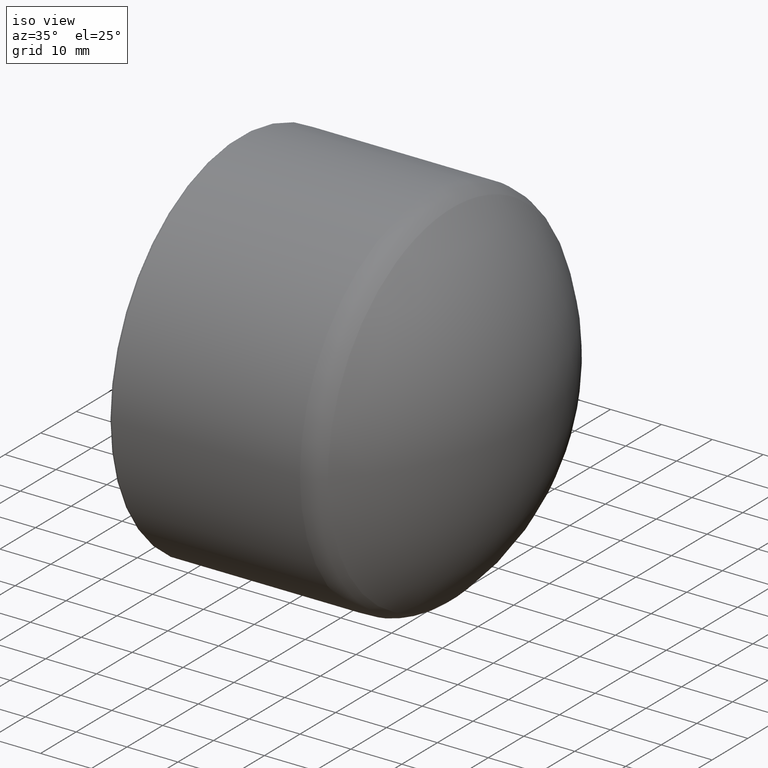
[diagram: clean part render]
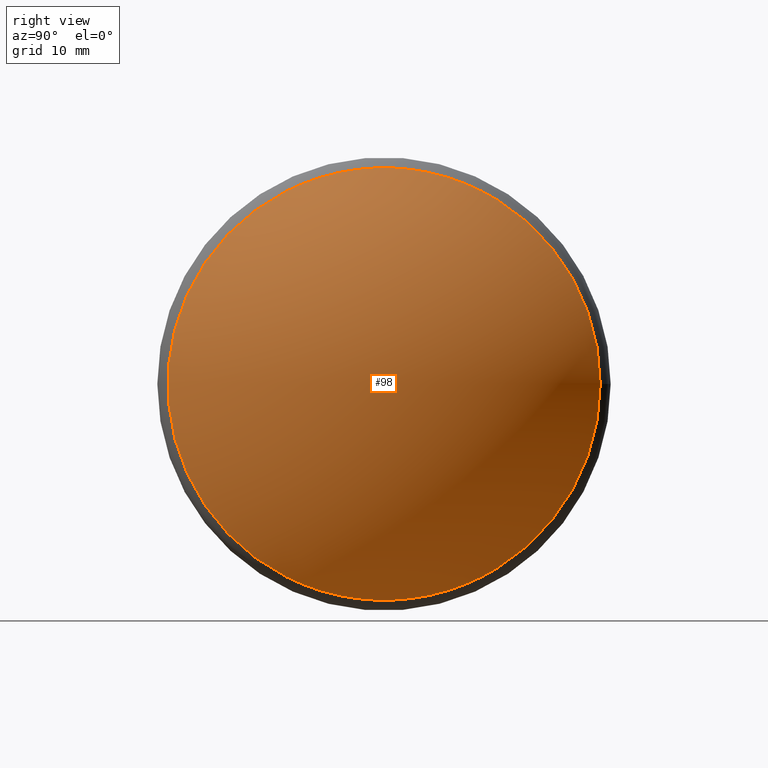
[diagram: tour spotlight — one face highlighted and labeled with its STEP entity id]
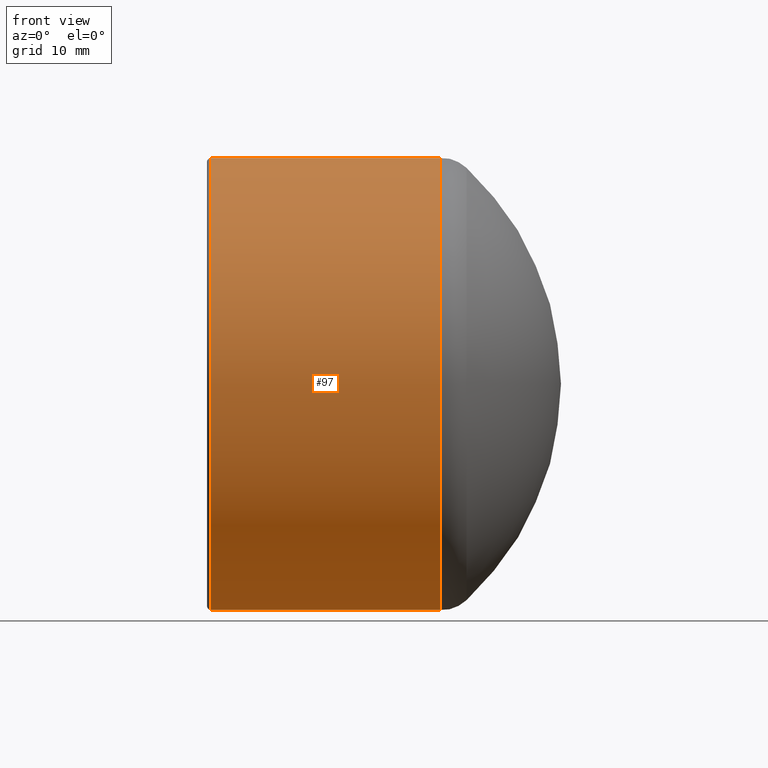
[diagram: tour spotlight — one face highlighted and labeled with its STEP entity id]
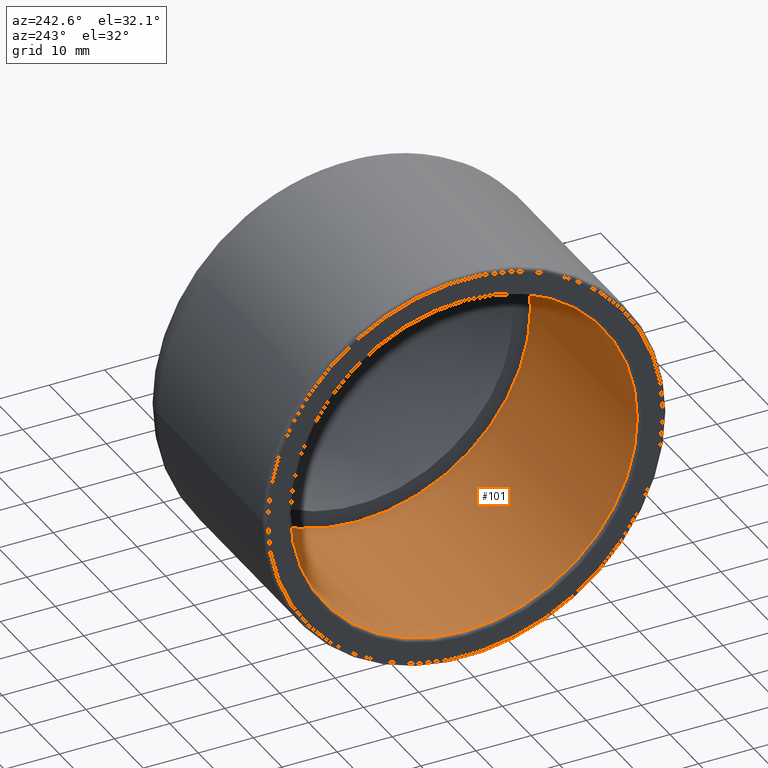
[diagram: tour spotlight — one face highlighted and labeled with its STEP entity id]
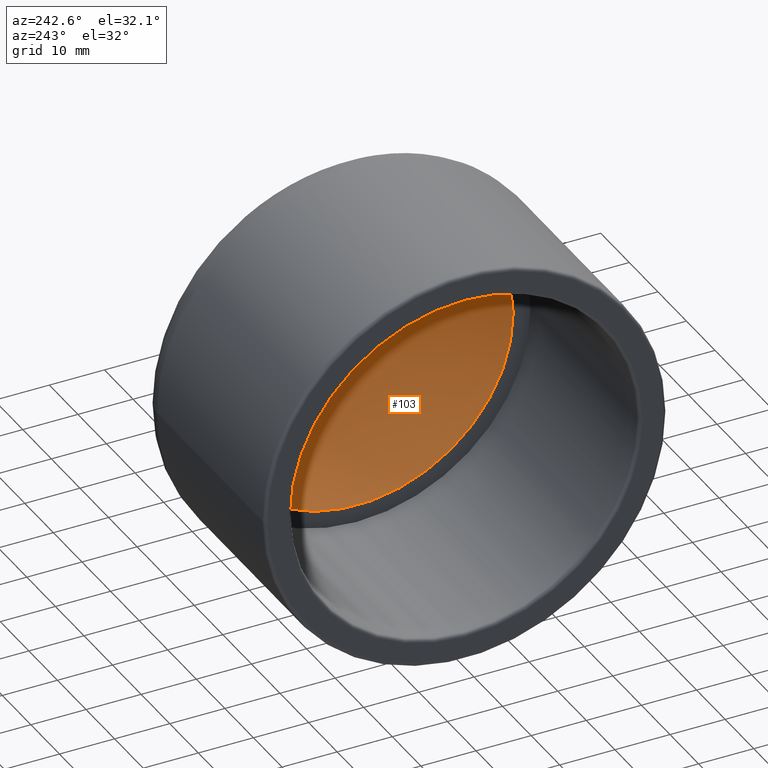
[diagram: tour spotlight — one face highlighted and labeled with its STEP entity id]
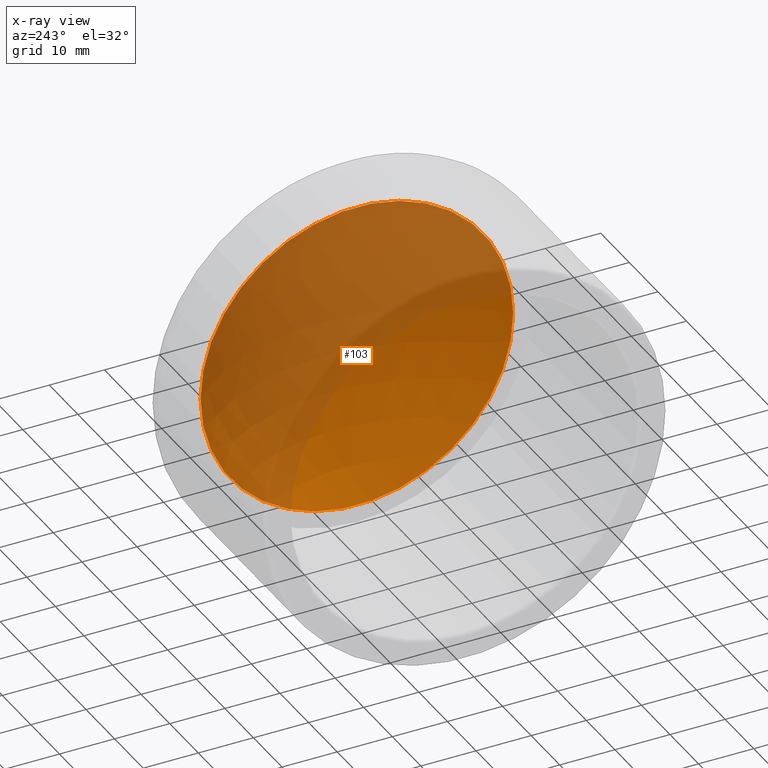
[diagram: x-ray of the same camera — body ghosted, this tour face saturated]
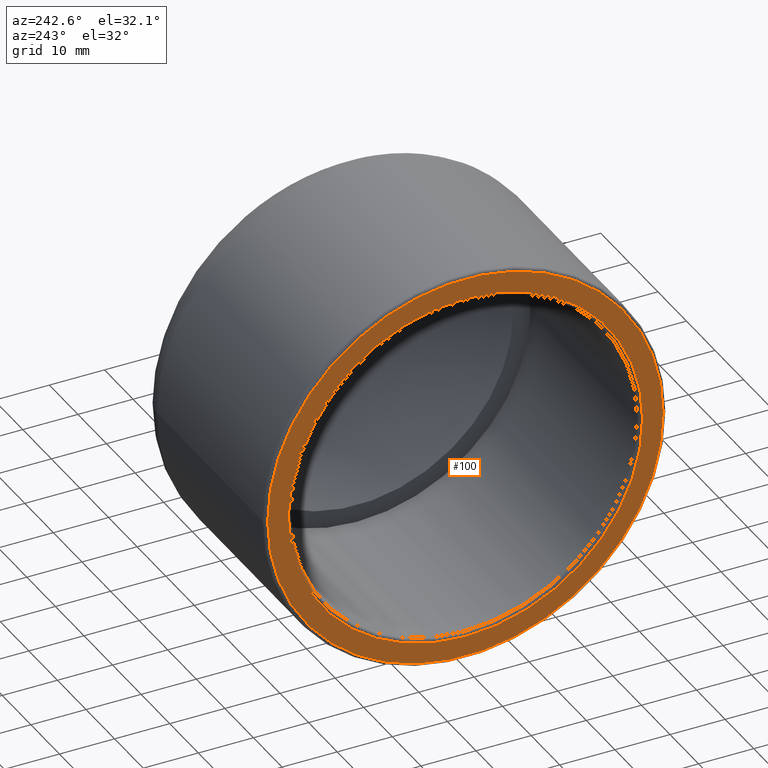
[diagram: tour spotlight — one face highlighted and labeled with its STEP entity id]
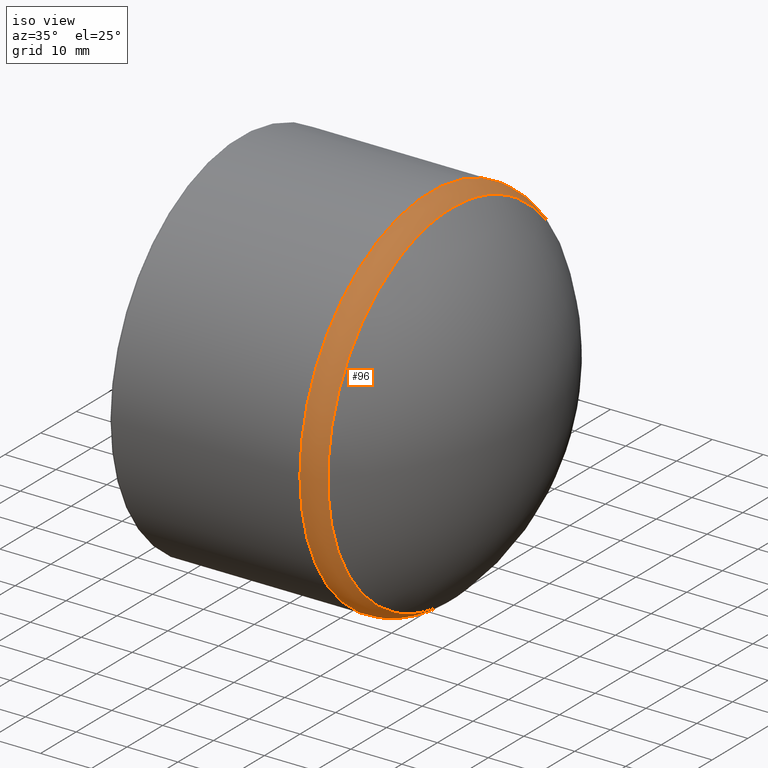
[diagram: tour spotlight — one face highlighted and labeled with its STEP entity id]
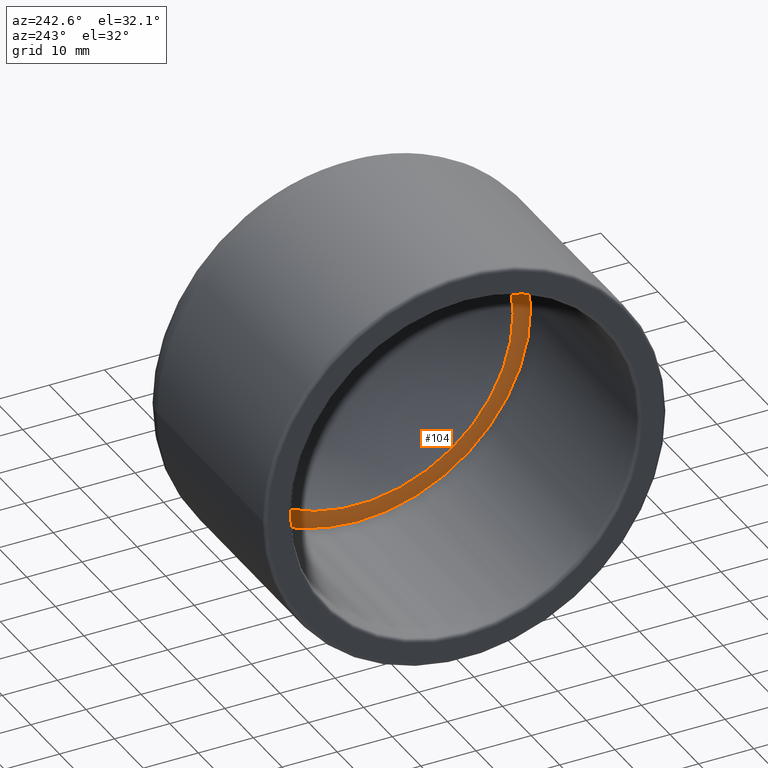
[diagram: tour spotlight — one face highlighted and labeled with its STEP entity id]
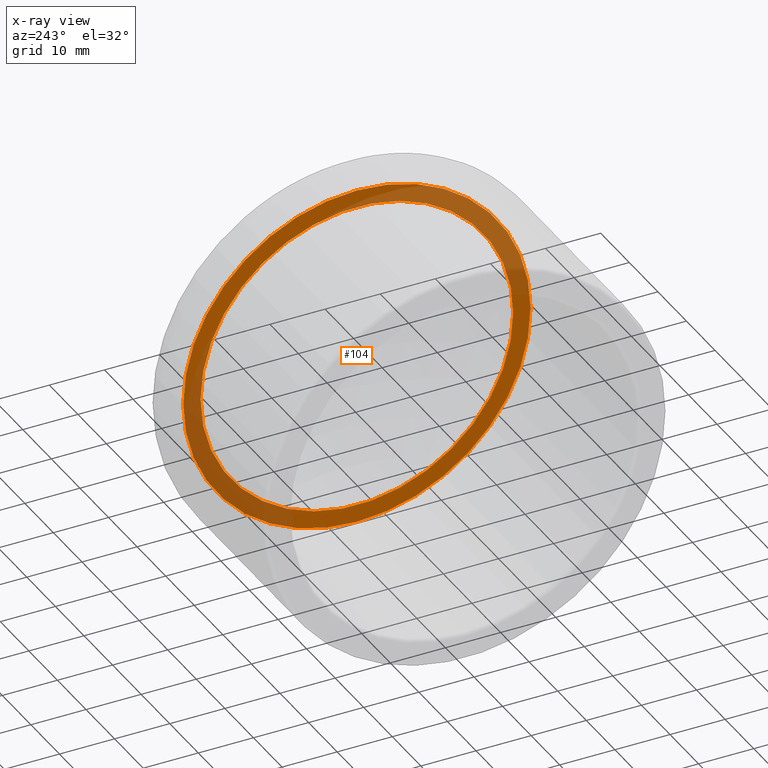
[diagram: x-ray of the same camera — body ghosted, this tour face saturated]
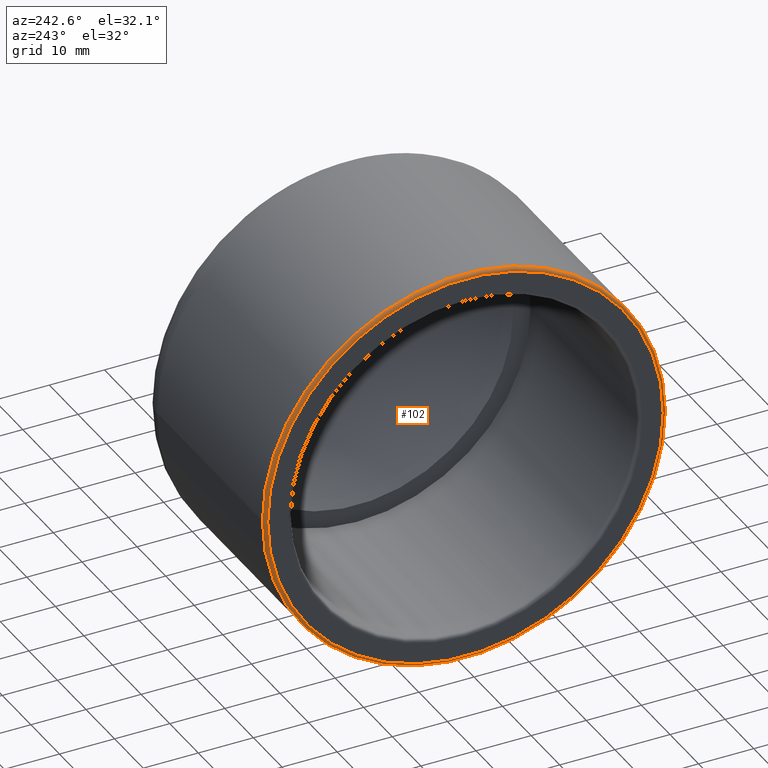
[diagram: tour spotlight — one face highlighted and labeled with its STEP entity id]
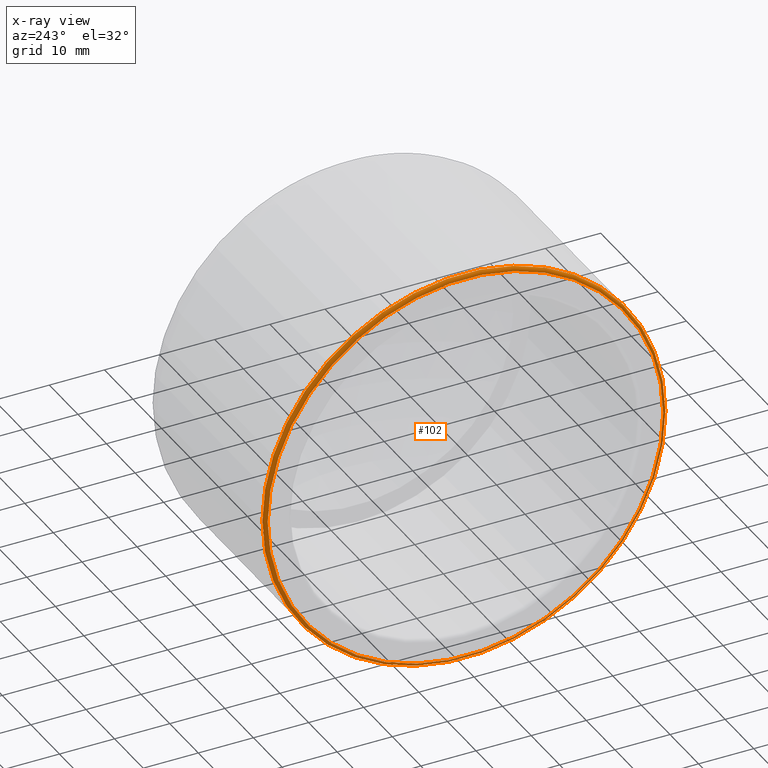
[diagram: x-ray of the same camera — body ghosted, this tour face saturated]
A machine part: a face-by-face anatomy tour. The part has 9 B-rep faces; the first image is the clean iso view, then the 8 largest visible faces are spotlighted one at a time (largest first), each with its STEP entity span.

Face 1 — right view, entity #98. In plain terms, the highlighted spherical surface has radius 47.5047 mm.
Definition (entity closure, byte-faithful):
#17=SPHERICAL_SURFACE('',#112,47.5046783625731);
#30=FACE_OUTER_BOUND('',#41,.T.);
#41=EDGE_LOOP('',(#81));
#54=CIRCLE('',#109,34.8174368435992);
#62=VERTEX_POINT('',#164);
#70=EDGE_CURVE('',#62,#62,#54,.T.);
#81=ORIENTED_EDGE('',*,*,#70,.F.);
#98=ADVANCED_FACE('',(#30),#17,.T.);
#109=AXIS2_PLACEMENT_3D('',#165,#130,#131);
#112=AXIS2_PLACEMENT_3D('',#169,#136,#137);
#130=DIRECTION('center_axis',(-1.,-1.2277497043788E-16,0.));
#131=DIRECTION('ref_axis',(1.2166827667125E-16,-1.,1.83697019872103E-16));
#136=DIRECTION('center_axis',(0.,0.,1.));
#137=DIRECTION('ref_axis',(1.,0.,0.));
#164=CARTESIAN_POINT('',(-15.1868727753507,34.8174368435992,-1.06597656462572E-14));
#165=CARTESIAN_POINT('Origin',(-15.1868727753507,-1.86682157061912E-15,
0.));
#169=CARTESIAN_POINT('Origin',(-47.5046783625731,-5.81764523012497E-15,
0.));

Face 2 — front view, entity #97. In plain terms, the highlighted cylindrical surface (bore or boss wall) has radius 36.5 mm, axis along (1, 0, 0).
Definition (entity closure, byte-faithful):
#19=CYLINDRICAL_SURFACE('',#110,36.5);
#22=FACE_BOUND('',#40,.T.);
#29=FACE_OUTER_BOUND('',#39,.T.);
#39=EDGE_LOOP('',(#79));
#40=EDGE_LOOP('',(#80));
#53=CIRCLE('',#108,36.5);
#55=CIRCLE('',#111,36.5);
#61=VERTEX_POINT('',#162);
#63=VERTEX_POINT('',#167);
#69=EDGE_CURVE('',#61,#61,#53,.T.);
#71=EDGE_CURVE('',#63,#63,#55,.T.);
#79=ORIENTED_EDGE('',*,*,#71,.F.);
#80=ORIENTED_EDGE('',*,*,#69,.F.);
#97=ADVANCED_FACE('',(#29,#22),#19,.T.);
#108=AXIS2_PLACEMENT_3D('',#163,#128,#129);
#110=AXIS2_PLACEMENT_3D('',#166,#132,#133);
#111=AXIS2_PLACEMENT_3D('',#168,#134,#135);
#128=DIRECTION('center_axis',(1.,1.2277497043788E-16,0.));
#129=DIRECTION('ref_axis',(1.2166827667125E-16,-1.,1.83697019872103E-16));
#132=DIRECTION('center_axis',(1.,1.2277497043788E-16,0.));
#133=DIRECTION('ref_axis',(-1.2166827667125E-16,1.,0.));
#134=DIRECTION('center_axis',(-1.,-1.2277497043788E-16,0.));
#135=DIRECTION('ref_axis',(1.2166827667125E-16,-1.,1.83697019872103E-16));
#162=CARTESIAN_POINT('',(-19.4728122284196,36.5,-2.23498040844392E-15));
#163=CARTESIAN_POINT('Origin',(-19.4728122284196,-2.3907739456866E-15,0.));
#166=CARTESIAN_POINT('Origin',(-37.05,-4.54881265472344E-15,0.));
#167=CARTESIAN_POINT('',(-56.37,36.5,-1.11749020422196E-14));
#168=CARTESIAN_POINT('Origin',(-56.37,-6.92082508358327E-15,0.));

Face 3 — auxiliary view, entity #101. In plain terms, the highlighted cylindrical surface (bore or boss wall) has radius 31.5 mm, axis along (1, 0, 0).
Definition (entity closure, byte-faithful):
#20=CYLINDRICAL_SURFACE('',#118,31.5);
#25=FACE_BOUND('',#47,.T.);
#33=FACE_OUTER_BOUND('',#46,.T.);
#46=EDGE_LOOP('',(#86));
#47=EDGE_LOOP('',(#87));
#56=CIRCLE('',#114,31.5);
#59=CIRCLE('',#119,31.5);
#64=VERTEX_POINT('',#171);
#67=VERTEX_POINT('',#179);
#72=EDGE_CURVE('',#64,#64,#56,.T.);
#75=EDGE_CURVE('',#67,#67,#59,.T.);
#86=ORIENTED_EDGE('',*,*,#75,.T.);
#87=ORIENTED_EDGE('',*,*,#72,.F.);
#101=ADVANCED_FACE('',(#33,#25),#20,.F.);
#114=AXIS2_PLACEMENT_3D('',#172,#140,#141);
#118=AXIS2_PLACEMENT_3D('',#178,#148,#149);
#119=AXIS2_PLACEMENT_3D('',#180,#150,#151);
#140=DIRECTION('center_axis',(1.,1.2277497043788E-16,0.));
#141=DIRECTION('ref_axis',(1.2335811384724E-16,-1.,1.83697019872103E-16));
#148=DIRECTION('center_axis',(1.,1.2277497043788E-16,0.));
#149=DIRECTION('ref_axis',(-1.2166827667125E-16,1.,0.));
#150=DIRECTION('center_axis',(1.,1.2277497043788E-16,0.));
#151=DIRECTION('ref_axis',(0.,0.,-1.));
#171=CARTESIAN_POINT('',(-56.37,31.5,-1.92881870865708E-15));
#172=CARTESIAN_POINT('Origin',(-56.37,-6.92082508358327E-15,0.));
#178=CARTESIAN_POINT('Origin',(-38.,-4.66544887663942E-15,0.));
#179=CARTESIAN_POINT('',(-19.,31.5,0.));
#180=CARTESIAN_POINT('Origin',(-19.,-2.33272443831971E-15,0.));

Face 4 — auxiliary view, entity #103. An x-ray twin of the same camera follows (body ghosted, this face saturated) — the face is partly hidden behind the body. In plain terms, the highlighted spherical surface has radius 40.2025 mm.
Definition (entity closure, byte-faithful):
#18=SPHERICAL_SURFACE('',#121,40.2024773932372);
#35=FACE_OUTER_BOUND('',#50,.T.);
#50=EDGE_LOOP('',(#90));
#60=CIRCLE('',#122,28.35);
#68=VERTEX_POINT('',#183);
#76=EDGE_CURVE('',#68,#68,#60,.T.);
#90=ORIENTED_EDGE('',*,*,#76,.F.);
#103=ADVANCED_FACE('',(#35),#18,.F.);
#121=AXIS2_PLACEMENT_3D('',#182,#154,#155);
#122=AXIS2_PLACEMENT_3D('',#184,#156,#157);
#154=DIRECTION('center_axis',(0.,0.,1.));
#155=DIRECTION('ref_axis',(1.,0.,0.));
#156=DIRECTION('center_axis',(1.,1.2277497043788E-16,0.));
#157=DIRECTION('ref_axis',(0.,0.,-1.));
#182=CARTESIAN_POINT('Origin',(-47.5046783625731,-5.81764523012497E-15,
0.));
#183=CARTESIAN_POINT('',(-19.,28.35,0.));
#184=CARTESIAN_POINT('Origin',(-19.,-2.33272443831971E-15,0.));

Face 5 — auxiliary view, entity #100. In plain terms, the highlighted planar face has unit normal (-1, -0, 0).
Definition (entity closure, byte-faithful):
#15=PLANE('',#116);
#24=FACE_BOUND('',#45,.T.);
#32=FACE_OUTER_BOUND('',#44,.T.);
#44=EDGE_LOOP('',(#84));
#45=EDGE_LOOP('',(#85));
#57=CIRCLE('',#115,32.13);
#58=CIRCLE('',#117,35.87);
#65=VERTEX_POINT('',#173);
#66=VERTEX_POINT('',#176);
#73=EDGE_CURVE('',#65,#65,#57,.T.);
#74=EDGE_CURVE('',#66,#66,#58,.T.);
#84=ORIENTED_EDGE('',*,*,#74,.F.);
#85=ORIENTED_EDGE('',*,*,#73,.F.);
#100=ADVANCED_FACE('',(#32,#24),#15,.T.);
#115=AXIS2_PLACEMENT_3D('',#174,#142,#143);
#116=AXIS2_PLACEMENT_3D('',#175,#144,#145);
#117=AXIS2_PLACEMENT_3D('',#177,#146,#147);
#142=DIRECTION('center_axis',(-1.,-1.2277497043788E-16,0.));
#143=DIRECTION('ref_axis',(1.2277497043788E-16,-1.,1.83697019872103E-16));
#144=DIRECTION('center_axis',(-1.,-1.2277497043788E-16,0.));
#145=DIRECTION('ref_axis',(0.,0.,1.));
#146=DIRECTION('center_axis',(1.,1.2277497043788E-16,0.));
#147=DIRECTION('ref_axis',(1.2277497043788E-16,-1.,1.83697019872103E-16));
#173=CARTESIAN_POINT('',(-57.,32.13,-9.83697541415112E-15));
#174=CARTESIAN_POINT('Origin',(-57.,-6.99817331495913E-15,0.));
#175=CARTESIAN_POINT('Origin',(-57.,36.5,0.));
#176=CARTESIAN_POINT('',(-57.,35.87,-2.19640403427078E-15));
#177=CARTESIAN_POINT('Origin',(-57.,-6.99817331495913E-15,0.));

Face 6 — iso view, entity #96. In plain terms, the highlighted toroidal blend (fillet) surface has major radius 30.2 mm and minor (blend) radius 6.3 mm.
Definition (entity closure, byte-faithful):
#21=FACE_BOUND('',#38,.T.);
#28=FACE_OUTER_BOUND('',#37,.T.);
#37=EDGE_LOOP('',(#77));
#38=EDGE_LOOP('',(#78));
#53=CIRCLE('',#108,36.5);
#54=CIRCLE('',#109,34.8174368435992);
#61=VERTEX_POINT('',#162);
#62=VERTEX_POINT('',#164);
#69=EDGE_CURVE('',#61,#61,#53,.T.);
#70=EDGE_CURVE('',#62,#62,#54,.T.);
#77=ORIENTED_EDGE('',*,*,#69,.T.);
#78=ORIENTED_EDGE('',*,*,#70,.T.);
#93=TOROIDAL_SURFACE('',#107,30.2,6.3);
#96=ADVANCED_FACE('',(#28,#21),#93,.T.);
#107=AXIS2_PLACEMENT_3D('',#161,#126,#127);
#108=AXIS2_PLACEMENT_3D('',#163,#128,#129);
#109=AXIS2_PLACEMENT_3D('',#165,#130,#131);
#126=DIRECTION('center_axis',(1.,1.2277497043788E-16,0.));
#127=DIRECTION('ref_axis',(0.,0.,-1.));
#128=DIRECTION('center_axis',(1.,1.2277497043788E-16,0.));
#129=DIRECTION('ref_axis',(1.2166827667125E-16,-1.,1.83697019872103E-16));
#130=DIRECTION('center_axis',(-1.,-1.2277497043788E-16,0.));
#131=DIRECTION('ref_axis',(1.2166827667125E-16,-1.,1.83697019872103E-16));
#161=CARTESIAN_POINT('Origin',(-19.4728122284196,-2.3907739456866E-15,0.));
#162=CARTESIAN_POINT('',(-19.4728122284196,36.5,-2.23498040844392E-15));
#163=CARTESIAN_POINT('Origin',(-19.4728122284196,-2.3907739456866E-15,0.));
#164=CARTESIAN_POINT('',(-15.1868727753507,34.8174368435992,-1.06597656462572E-14));
#165=CARTESIAN_POINT('Origin',(-15.1868727753507,-1.86682157061912E-15,
0.));

Face 7 — auxiliary view, entity #104. An x-ray twin of the same camera follows (body ghosted, this face saturated) — the face is partly hidden behind the body. In plain terms, the highlighted planar face has unit normal (-1, -0, 0).
Definition (entity closure, byte-faithful):
#16=PLANE('',#123);
#27=FACE_BOUND('',#52,.T.);
#36=FACE_OUTER_BOUND('',#51,.T.);
#51=EDGE_LOOP('',(#91));
#52=EDGE_LOOP('',(#92));
#59=CIRCLE('',#119,31.5);
#60=CIRCLE('',#122,28.35);
#67=VERTEX_POINT('',#179);
#68=VERTEX_POINT('',#183);
#75=EDGE_CURVE('',#67,#67,#59,.T.);
#76=EDGE_CURVE('',#68,#68,#60,.T.);
#91=ORIENTED_EDGE('',*,*,#75,.F.);
#92=ORIENTED_EDGE('',*,*,#76,.T.);
#104=ADVANCED_FACE('',(#36,#27),#16,.T.);
#119=AXIS2_PLACEMENT_3D('',#180,#150,#151);
#122=AXIS2_PLACEMENT_3D('',#184,#156,#157);
#123=AXIS2_PLACEMENT_3D('',#185,#158,#159);
#150=DIRECTION('center_axis',(1.,1.2277497043788E-16,0.));
#151=DIRECTION('ref_axis',(0.,0.,-1.));
#156=DIRECTION('center_axis',(1.,1.2277497043788E-16,0.));
#157=DIRECTION('ref_axis',(0.,0.,-1.));
#158=DIRECTION('center_axis',(-1.,-1.2277497043788E-16,0.));
#159=DIRECTION('ref_axis',(0.,0.,1.));
#179=CARTESIAN_POINT('',(-19.,31.5,0.));
#180=CARTESIAN_POINT('Origin',(-19.,-2.33272443831971E-15,0.));
#183=CARTESIAN_POINT('',(-19.,28.35,0.));
#184=CARTESIAN_POINT('Origin',(-19.,-2.33272443831971E-15,0.));
#185=CARTESIAN_POINT('Origin',(-19.,31.5,0.));

Face 8 — auxiliary view, entity #102. An x-ray twin of the same camera follows (body ghosted, this face saturated) — the face is partly hidden behind the body. In plain terms, the highlighted toroidal blend (fillet) surface has major radius 35.87 mm and minor (blend) radius 0.63 mm.
Definition (entity closure, byte-faithful):
#26=FACE_BOUND('',#49,.T.);
#34=FACE_OUTER_BOUND('',#48,.T.);
#48=EDGE_LOOP('',(#88));
#49=EDGE_LOOP('',(#89));
#55=CIRCLE('',#111,36.5);
#58=CIRCLE('',#117,35.87);
#63=VERTEX_POINT('',#167);
#66=VERTEX_POINT('',#176);
#71=EDGE_CURVE('',#63,#63,#55,.T.);
#74=EDGE_CURVE('',#66,#66,#58,.T.);
#88=ORIENTED_EDGE('',*,*,#74,.T.);
#89=ORIENTED_EDGE('',*,*,#71,.T.);
#95=TOROIDAL_SURFACE('',#120,35.87,0.63);
#102=ADVANCED_FACE('',(#34,#26),#95,.T.);
#111=AXIS2_PLACEMENT_3D('',#168,#134,#135);
#117=AXIS2_PLACEMENT_3D('',#177,#146,#147);
#120=AXIS2_PLACEMENT_3D('',#181,#152,#153);
#134=DIRECTION('center_axis',(-1.,-1.2277497043788E-16,0.));
#135=DIRECTION('ref_axis',(1.2166827667125E-16,-1.,1.83697019872103E-16));
#146=DIRECTION('center_axis',(1.,1.2277497043788E-16,0.));
#147=DIRECTION('ref_axis',(1.2277497043788E-16,-1.,1.83697019872103E-16));
#152=DIRECTION('center_axis',(1.,1.2277497043788E-16,0.));
#153=DIRECTION('ref_axis',(0.,0.,-1.));
#167=CARTESIAN_POINT('',(-56.37,36.5,-1.11749020422196E-14));
#168=CARTESIAN_POINT('Origin',(-56.37,-6.92082508358327E-15,0.));
#176=CARTESIAN_POINT('',(-57.,35.87,-2.19640403427078E-15));
#177=CARTESIAN_POINT('Origin',(-57.,-6.99817331495913E-15,0.));
#181=CARTESIAN_POINT('Origin',(-56.37,-6.92082508358327E-15,0.));